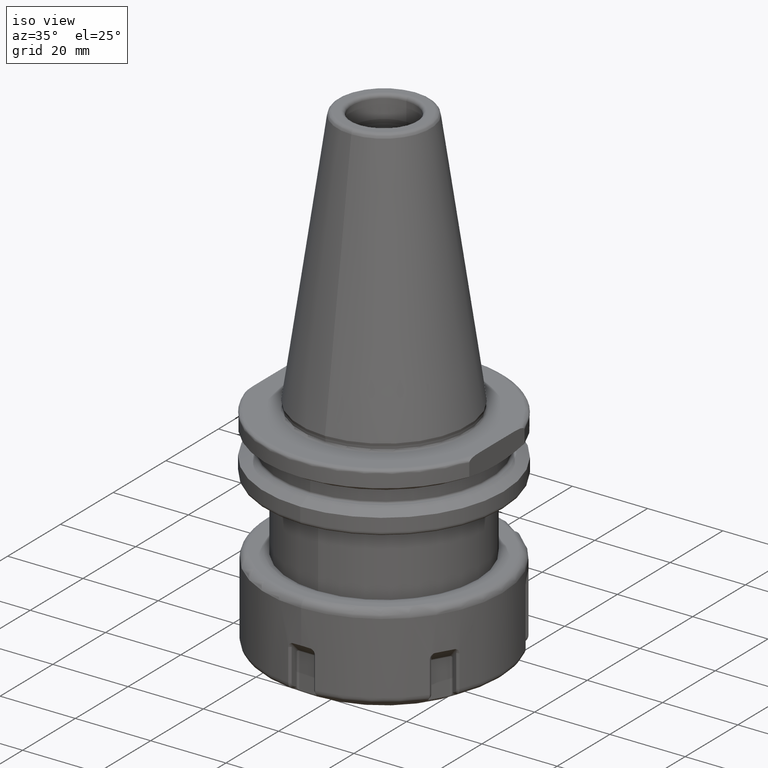
[diagram: clean part render]
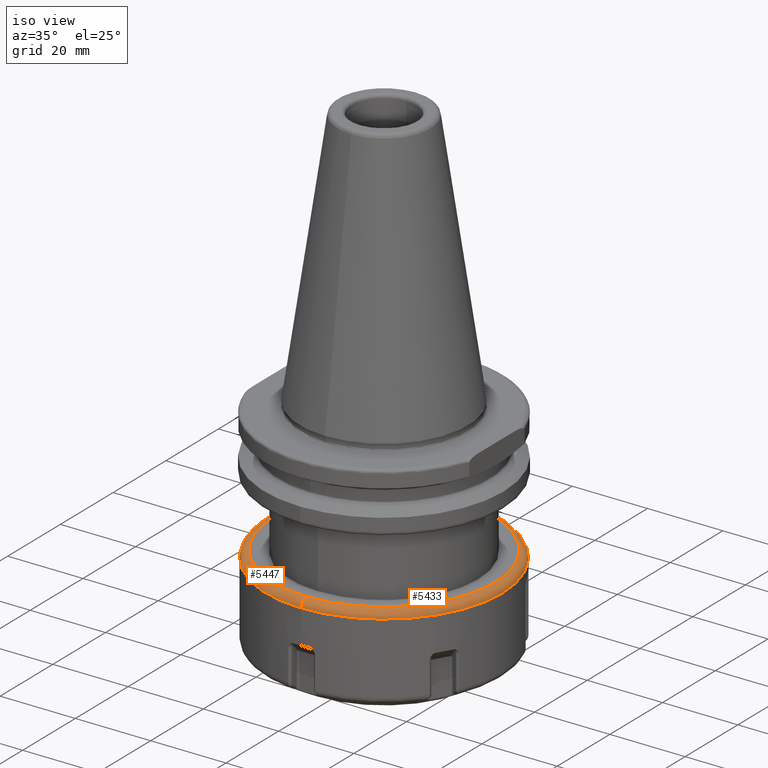
[diagram: same view with one multi-face feature highlighted, each face labeled with its STEP entity id]
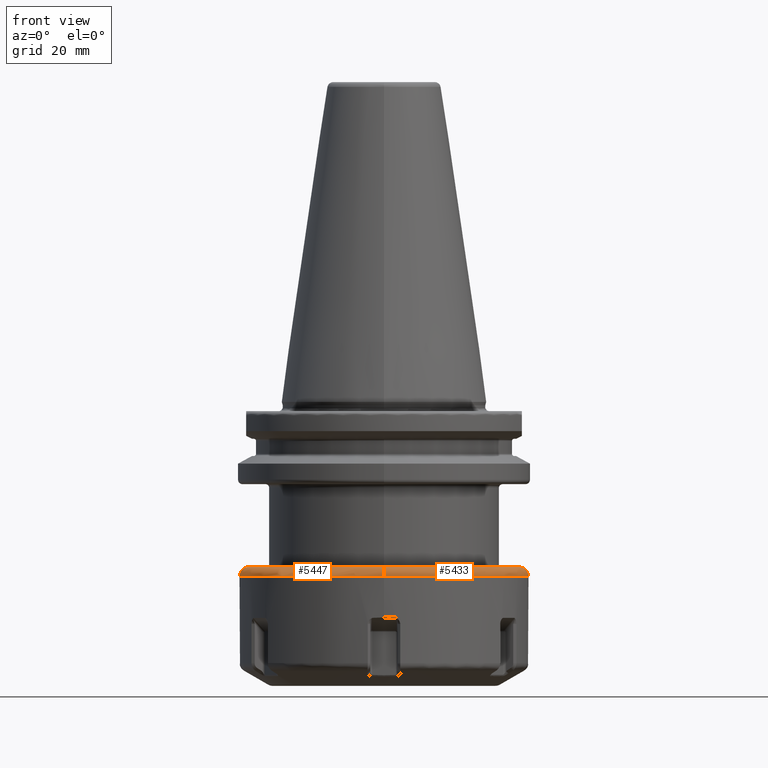
[diagram: same view with one multi-face feature highlighted, each face labeled with its STEP entity id]
A machine part, iso view. The highlighted faces form ONE feature: a constant-radius fillet chain: 2 tangent blend faces with common blend radius 2 mm. The faces share edges in the B-rep.
A second angle (front view) of the same feature is appended — it is thin or edge-on in the first view.
Their STEP definitions:
[1] entity #5447 (Torus):
#1066=CARTESIAN_POINT('',(0,-29.45,-20));
#1067=DIRECTION('',(-1,0,0));
#1068=DIRECTION('',(0,-1,0));
#1069=AXIS2_PLACEMENT_3D('',#1066,#1067,#1068);
#1071=CARTESIAN_POINT('',(0,29.45,-20));
#1072=DIRECTION('',(1,0,0));
#1073=DIRECTION('',(0,1,0));
#1074=AXIS2_PLACEMENT_3D('',#1071,#1072,#1073);
#1076=CARTESIAN_POINT('',(0,0,-20));
#1077=DIRECTION('',(0,0,1));
#1078=DIRECTION('',(0,1,0));
#1079=AXIS2_PLACEMENT_3D('',#1076,#1077,#1078);
#2480=CARTESIAN_POINT('',(0,0,-18));
#2481=DIRECTION('',(0,0,1));
#2482=DIRECTION('',(0,1,0));
#2483=AXIS2_PLACEMENT_3D('',#2480,#2481,#2482);
#3774=CARTESIAN_POINT('',(0,29.45,-18));
#3775=CARTESIAN_POINT('',(0,-29.45,-18));
#3776=VERTEX_POINT('',#3774);
#3777=VERTEX_POINT('',#3775);
#3807=CARTESIAN_POINT('',(0,31.45,-20));
#3808=CARTESIAN_POINT('',(0,-31.45,-20));
#3809=VERTEX_POINT('',#3807);
#3810=VERTEX_POINT('',#3808);
#5434=CARTESIAN_POINT('',(0,0,-20));
#5435=DIRECTION('',(0,0,1));
#5436=DIRECTION('',(0,-1,0));
#5437=AXIS2_PLACEMENT_3D('',#5434,#5435,#5436);
#5438=TOROIDAL_SURFACE('',#5437,29.45,2);
#5440=ORIENTED_EDGE('',*,*,#5439,.F.);
#5441=ORIENTED_EDGE('',*,*,#5429,.T.);
#5443=ORIENTED_EDGE('',*,*,#5442,.T.);
#5444=ORIENTED_EDGE('',*,*,#5425,.F.);
#5445=EDGE_LOOP('',(#5440,#5441,#5443,#5444));
#5446=FACE_OUTER_BOUND('',#5445,.F.);
#5447=ADVANCED_FACE('',(#5446),#5438,.T.);
#1070=CIRCLE('',#1069,2);
#1075=CIRCLE('',#1074,2);
#1080=CIRCLE('',#1079,31.45);
#2484=CIRCLE('',#2483,29.45);
#5425=EDGE_CURVE('',#3810,#3777,#1070,.T.);
#5429=EDGE_CURVE('',#3809,#3776,#1075,.T.);
#5439=EDGE_CURVE('',#3809,#3810,#1080,.T.);
#5442=EDGE_CURVE('',#3776,#3777,#2484,.T.);
[2] entity #5433 (Torus):
#1038=CARTESIAN_POINT('',(0,0,-20));
#1039=DIRECTION('',(0,0,1));
#1040=DIRECTION('',(0,-1,0));
#1041=AXIS2_PLACEMENT_3D('',#1038,#1039,#1040);
#1066=CARTESIAN_POINT('',(0,-29.45,-20));
#1067=DIRECTION('',(-1,0,0));
#1068=DIRECTION('',(0,-1,0));
#1069=AXIS2_PLACEMENT_3D('',#1066,#1067,#1068);
#1071=CARTESIAN_POINT('',(0,29.45,-20));
#1072=DIRECTION('',(1,0,0));
#1073=DIRECTION('',(0,1,0));
#1074=AXIS2_PLACEMENT_3D('',#1071,#1072,#1073);
#2485=CARTESIAN_POINT('',(0,0,-18));
#2486=DIRECTION('',(0,0,-1));
#2487=DIRECTION('',(0,1,0));
#2488=AXIS2_PLACEMENT_3D('',#2485,#2486,#2487);
#3774=CARTESIAN_POINT('',(0,29.45,-18));
#3775=CARTESIAN_POINT('',(0,-29.45,-18));
#3776=VERTEX_POINT('',#3774);
#3777=VERTEX_POINT('',#3775);
#3807=CARTESIAN_POINT('',(0,31.45,-20));
#3808=CARTESIAN_POINT('',(0,-31.45,-20));
#3809=VERTEX_POINT('',#3807);
#3810=VERTEX_POINT('',#3808);
#5419=CARTESIAN_POINT('',(0,0,-20));
#5420=DIRECTION('',(0,0,1));
#5421=DIRECTION('',(0,-1,0));
#5422=AXIS2_PLACEMENT_3D('',#5419,#5420,#5421);
#5423=TOROIDAL_SURFACE('',#5422,29.45,2);
#5424=ORIENTED_EDGE('',*,*,#5364,.F.);
#5426=ORIENTED_EDGE('',*,*,#5425,.T.);
#5428=ORIENTED_EDGE('',*,*,#5427,.F.);
#5430=ORIENTED_EDGE('',*,*,#5429,.F.);
#5431=EDGE_LOOP('',(#5424,#5426,#5428,#5430));
#5432=FACE_OUTER_BOUND('',#5431,.F.);
#5433=ADVANCED_FACE('',(#5432),#5423,.T.);
#1042=CIRCLE('',#1041,31.45);
#1070=CIRCLE('',#1069,2);
#1075=CIRCLE('',#1074,2);
#2489=CIRCLE('',#2488,29.45);
#5364=EDGE_CURVE('',#3810,#3809,#1042,.T.);
#5425=EDGE_CURVE('',#3810,#3777,#1070,.T.);
#5427=EDGE_CURVE('',#3776,#3777,#2489,.T.);
#5429=EDGE_CURVE('',#3809,#3776,#1075,.T.);